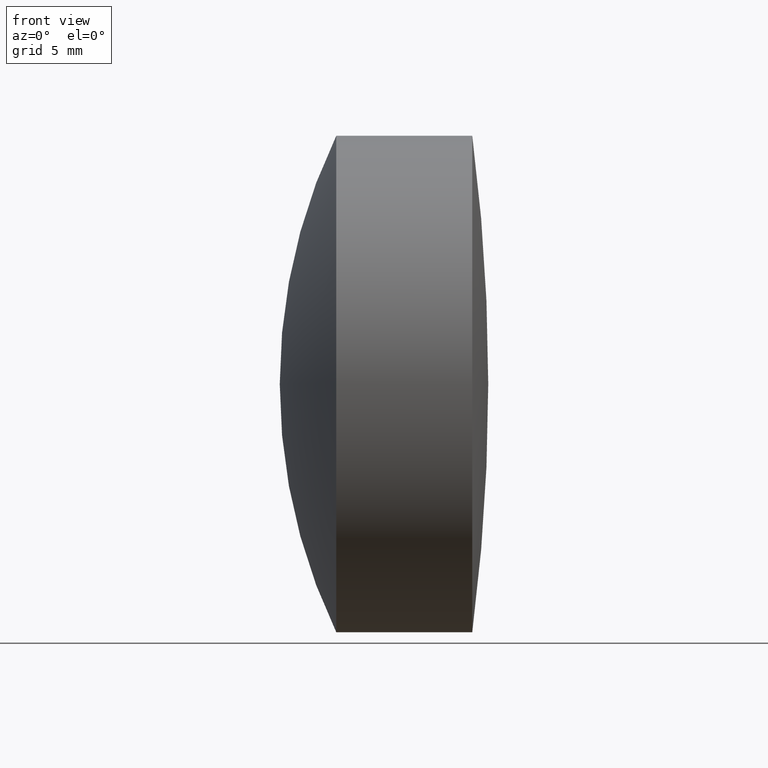
[diagram: clean part render]
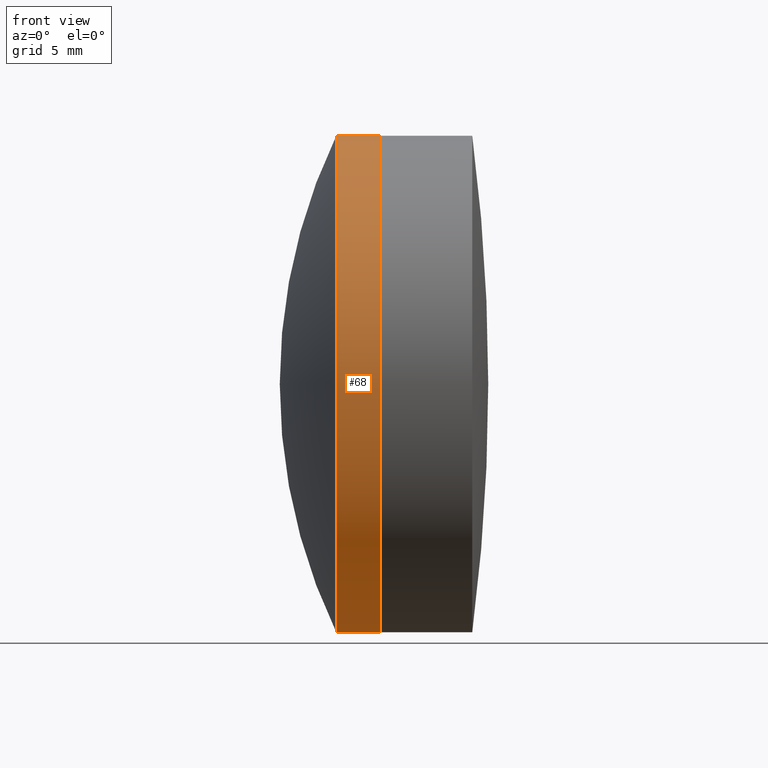
[diagram: same view with one face highlighted and labeled with its STEP entity id]
A machine part, front view. The second image highlights one B-rep face of the part: STEP entity #68.
In plain terms, the highlighted cylindrical surface (partial cylindrical patch) has radius 12.5 mm, axis along (-1, -0, -0).
Its self-contained STEP definition (entity closure, byte-faithful):
#6 = EDGE_CURVE ( 'NONE', #282, #297, #101, .T. ) ;
#15 = EDGE_LOOP ( 'NONE', ( #315, #233, #317, #292 ) ) ;
#17 = CARTESIAN_POINT ( 'NONE',  ( -9.702612178336682500, 0.0000000000000000000, 12.50000000000000000 ) ) ;
#68 = ADVANCED_FACE ( 'NONE', ( #105 ), #256, .T. ) ;
#69 = DIRECTION ( 'NONE',  ( -1.000000000000000000, -0.0000000000000000000, -0.0000000000000000000 ) ) ;
#78 = DIRECTION ( 'NONE',  ( -1.000000000000000000, -0.0000000000000000000, -0.0000000000000000000 ) ) ;
#79 = CARTESIAN_POINT ( 'NONE',  ( 33.32278150915288300, 1.530808498934191300E-015, -12.49999999999999800 ) ) ;
#81 = CARTESIAN_POINT ( 'NONE',  ( -9.702612178336682500, 0.0000000000000000000, 0.0000000000000000000 ) ) ;
#101 = LINE ( 'NONE', #106, #109 ) ;
#105 = FACE_OUTER_BOUND ( 'NONE', #15, .T. ) ;
#106 = CARTESIAN_POINT ( 'NONE',  ( -9.702612178336682500, 1.530808498934191500E-015, -12.50000000000000000 ) ) ;
#109 = VECTOR ( 'NONE', #281, 1000.000000000000000 ) ;
#134 = CARTESIAN_POINT ( 'NONE',  ( 33.32278150915288300, 0.0000000000000000000, 0.0000000000000000000 ) ) ;
#143 = EDGE_CURVE ( 'NONE', #297, #145, #185, .T. ) ;
#145 = VERTEX_POINT ( 'NONE', #198 ) ;
#146 = VERTEX_POINT ( 'NONE', #278 ) ;
#185 = CIRCLE ( 'NONE', #226, 12.50000000000000000 ) ;
#188 = DIRECTION ( 'NONE',  ( -1.000000000000000000, -0.0000000000000000000, -0.0000000000000000000 ) ) ;
#194 = CARTESIAN_POINT ( 'NONE',  ( 31.10608543863473900, 0.0000000000000000000, 0.0000000000000000000 ) ) ;
#198 = CARTESIAN_POINT ( 'NONE',  ( 31.10608543863473900, -1.530808498934191100E-015, 12.49999999999999800 ) ) ;
#202 = VECTOR ( 'NONE', #69, 1000.000000000000000 ) ;
#225 = AXIS2_PLACEMENT_3D ( 'NONE', #134, #299, #262 ) ;
#226 = AXIS2_PLACEMENT_3D ( 'NONE', #194, #188, #306 ) ;
#233 = ORIENTED_EDGE ( 'NONE', *, *, #323, .T. ) ;
#249 = DIRECTION ( 'NONE',  ( 0.0000000000000000000, 0.0000000000000000000, 1.000000000000000000 ) ) ;
#256 = CYLINDRICAL_SURFACE ( 'NONE', #342, 12.50000000000000000 ) ;
#262 = DIRECTION ( 'NONE',  ( 0.0000000000000000000, 0.0000000000000000000, 1.000000000000000000 ) ) ;
#268 = LINE ( 'NONE', #17, #202 ) ;
#278 = CARTESIAN_POINT ( 'NONE',  ( 33.32278150915288300, 0.0000000000000000000, 12.49999999999999800 ) ) ;
#281 = DIRECTION ( 'NONE',  ( -1.000000000000000000, -0.0000000000000000000, -0.0000000000000000000 ) ) ;
#282 = VERTEX_POINT ( 'NONE', #79 ) ;
#292 = ORIENTED_EDGE ( 'NONE', *, *, #143, .F. ) ;
#297 = VERTEX_POINT ( 'NONE', #322 ) ;
#299 = DIRECTION ( 'NONE',  ( -1.000000000000000000, -0.0000000000000000000, -0.0000000000000000000 ) ) ;
#302 = CIRCLE ( 'NONE', #225, 12.49999999999999800 ) ;
#306 = DIRECTION ( 'NONE',  ( 0.0000000000000000000, 0.0000000000000000000, 1.000000000000000000 ) ) ;
#315 = ORIENTED_EDGE ( 'NONE', *, *, #6, .F. ) ;
#317 = ORIENTED_EDGE ( 'NONE', *, *, #347, .T. ) ;
#322 = CARTESIAN_POINT ( 'NONE',  ( 31.10608543863473900, 0.0000000000000000000, -12.49999999999999800 ) ) ;
#323 = EDGE_CURVE ( 'NONE', #282, #146, #302, .T. ) ;
#342 = AXIS2_PLACEMENT_3D ( 'NONE', #81, #78, #249 ) ;
#347 = EDGE_CURVE ( 'NONE', #146, #145, #268, .T. ) ;